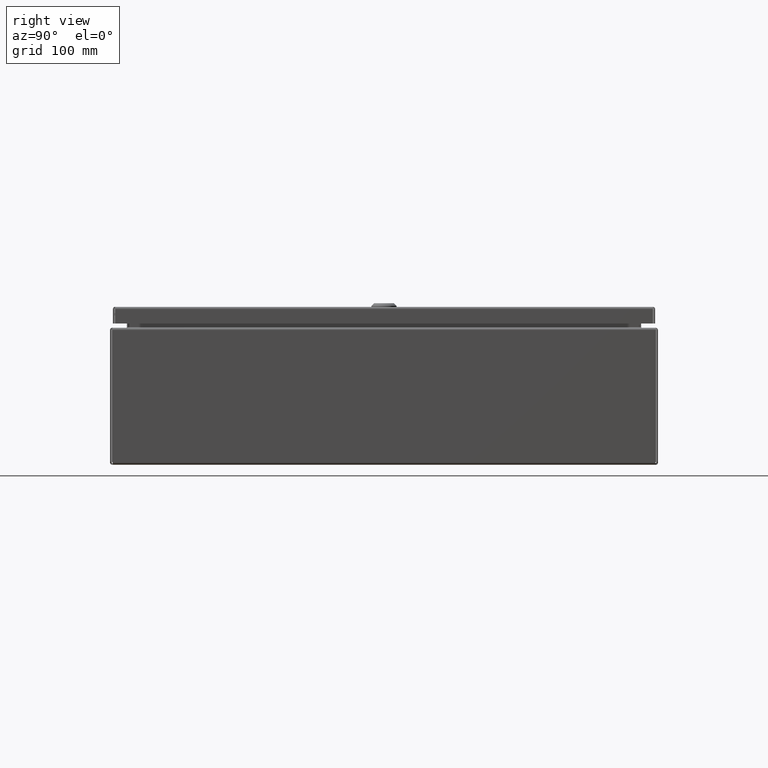
[diagram: clean part render]
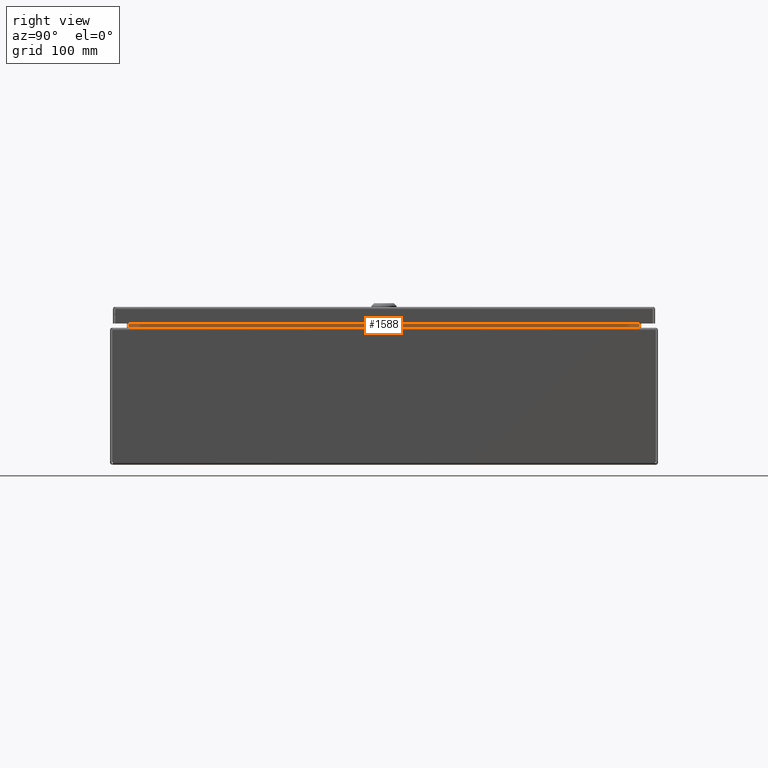
[diagram: same view with one face highlighted and labeled with its STEP entity id]
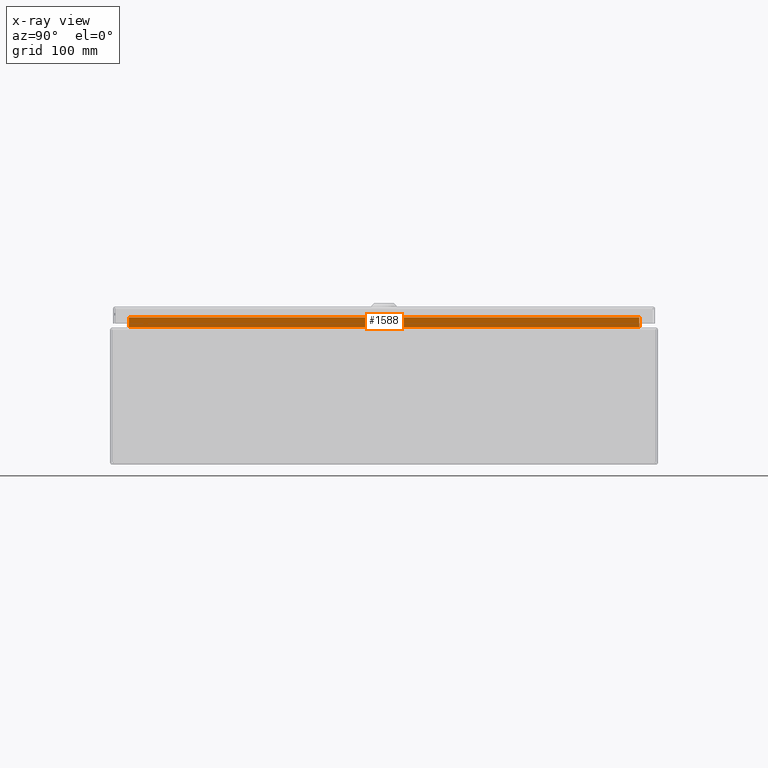
[diagram: x-ray of the same camera — body ghosted, the highlighted face saturated]
A machine part, right view. The second image highlights one B-rep face of the part: STEP entity #1588.
The next image is the same camera in x-ray: the body ghosted, the highlighted face saturated — about 0% of this face is hidden behind the body in this view.
In plain terms, the highlighted planar face has unit normal (1, 0, 0).
Its self-contained STEP definition (entity closure, byte-faithful):
#476=CARTESIAN_POINT('',(19.261499999999955,0.823548543456067,6.455404022560214));
#477=VERTEX_POINT('',#476);
#526=CARTESIAN_POINT('',(19.261499999999945,23.176451456543642,6.455404022560225));
#527=VERTEX_POINT('',#526);
#605=CARTESIAN_POINT('',(19.261499999999945,23.176451456543642,6.455404022560225));
#606=DIRECTION('',(0.0,-1.0,0.0));
#607=VECTOR('',#606,22.352902913087576);
#608=LINE('',#605,#607);
#609=EDGE_CURVE('',#527,#477,#608,.T.);
#1547=CARTESIAN_POINT('',(19.261499999999984,23.176451456543653,6.031249999999995));
#1548=VERTEX_POINT('',#1547);
#1549=CARTESIAN_POINT('',(19.261499999999984,23.176451456543653,6.031249999999995));
#1550=DIRECTION('',(-1.005120E-013,-3.350400E-014,1.0));
#1551=VECTOR('',#1550,0.424154022560230);
#1552=LINE('',#1549,#1551);
#1553=EDGE_CURVE('',#1548,#527,#1552,.T.);
#1565=CARTESIAN_POINT('',(19.261499999999970,11.999999999999856,6.219585628072504));
#1566=DIRECTION('',(1.0,0.0,0.0));
#1567=DIRECTION('',(0.0,0.0,-1.0));
#1568=AXIS2_PLACEMENT_3D('',#1565,#1566,#1567);
#1569=PLANE('',#1568);
#1570=ORIENTED_EDGE('',*,*,#609,.T.);
#1571=CARTESIAN_POINT('',(19.261499999999995,0.823548543456053,6.031249999999981));
#1572=VERTEX_POINT('',#1571);
#1573=CARTESIAN_POINT('',(19.261499999999995,0.823548543456054,6.031249999999984));
#1574=DIRECTION('',(-1.005120E-013,3.585975E-014,1.0));
#1575=VECTOR('',#1574,0.424154022560230);
#1576=LINE('',#1573,#1575);
#1577=EDGE_CURVE('',#1572,#477,#1576,.T.);
#1578=ORIENTED_EDGE('',*,*,#1577,.F.);
#1579=CARTESIAN_POINT('',(19.261499999999995,0.823548543456054,6.031249999999979));
#1580=DIRECTION('',(0.0,1.0,0.0));
#1581=VECTOR('',#1580,22.352902913087597);
#1582=LINE('',#1579,#1581);
#1583=EDGE_CURVE('',#1572,#1548,#1582,.T.);
#1584=ORIENTED_EDGE('',*,*,#1583,.T.);
#1585=ORIENTED_EDGE('',*,*,#1553,.T.);
#1586=EDGE_LOOP('',(#1570,#1578,#1584,#1585));
#1587=FACE_OUTER_BOUND('',#1586,.T.);
#1588=ADVANCED_FACE('',(#1587),#1569,.T.);